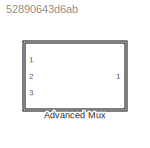
MODEL slx_52890643d6ab
KIND library
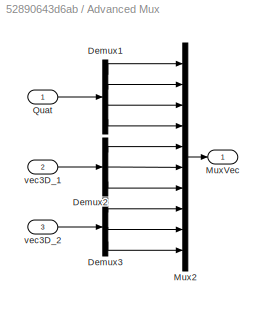
BLOCK [SubSystem] Advanced Mux
  Ports = [3, 1]
  RequestExecContextInheritance = off
BLOCK [Demux] Advanced Mux/Demux1
  DisplayOption = bar
  Ports = [1, 4]
BLOCK [Demux] Advanced Mux/Demux2
  DisplayOption = bar
  Outputs = 3
  Ports = [1, 3]
BLOCK [Demux] Advanced Mux/Demux3
  DisplayOption = bar
  Outputs = 3
  Ports = [1, 3]
BLOCK [Mux] Advanced Mux/Mux2
  DisplayOption = bar
  Inputs = 10
  Ports = [10, 1]
BLOCK [Outport] Advanced Mux/MuxVec
  IconDisplay = Port number
BLOCK [Inport] Advanced Mux/Quat
  IconDisplay = Port number
BLOCK [Inport] Advanced Mux/vec3D_1
  IconDisplay = Port number
  Port = 2
BLOCK [Inport] Advanced Mux/vec3D_2
  IconDisplay = Port number
  Port = 3
LINE Advanced Mux/Demux1:1 -> Advanced Mux/Mux2:1
LINE Advanced Mux/Demux1:2 -> Advanced Mux/Mux2:2
LINE Advanced Mux/Demux1:3 -> Advanced Mux/Mux2:3
LINE Advanced Mux/Demux1:4 -> Advanced Mux/Mux2:4
LINE Advanced Mux/Demux2:1 -> Advanced Mux/Mux2:5
LINE Advanced Mux/Demux2:2 -> Advanced Mux/Mux2:6
LINE Advanced Mux/Demux2:3 -> Advanced Mux/Mux2:7
LINE Advanced Mux/Demux3:1 -> Advanced Mux/Mux2:8
LINE Advanced Mux/Demux3:2 -> Advanced Mux/Mux2:9
LINE Advanced Mux/Demux3:3 -> Advanced Mux/Mux2:10
LINE Advanced Mux/Mux2:1 -> Advanced Mux/MuxVec:1
LINE Advanced Mux/Quat:1 -> Advanced Mux/Demux1:1
LINE Advanced Mux/vec3D_1:1 -> Advanced Mux/Demux2:1
LINE Advanced Mux/vec3D_2:1 -> Advanced Mux/Demux3:1
